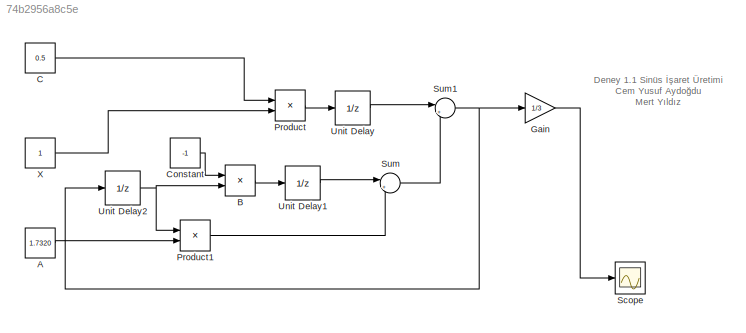
MODEL slx_74b2956a8c5e
KIND model
BLOCK [Constant] A
  Value = 1.7320
BLOCK [Product] B
  InputSameDT = off
  OutDataTypeStr = Inherit: Inherit via internal rule
  Ports = [2, 1]
  RndMeth = Floor
  SaturateOnIntegerOverflow = off
BLOCK [Constant] C
  Value = 0.5
BLOCK [Constant] Constant
  Value = -1
BLOCK [Gain] Gain
  Gain = 1/3
  OutDataTypeStr = Inherit: Inherit via internal rule
  ParamDataTypeStr = Inherit: Inherit via internal rule
  SaturateOnIntegerOverflow = off
BLOCK [Product] Product
  InputSameDT = off
  OutDataTypeStr = Inherit: Inherit via internal rule
  Ports = [2, 1]
  RndMeth = Floor
  SaturateOnIntegerOverflow = off
BLOCK [Product] Product1
  InputSameDT = off
  OutDataTypeStr = Inherit: Inherit via internal rule
  Ports = [2, 1]
  RndMeth = Floor
  SaturateOnIntegerOverflow = off
BLOCK [Scope] Scope
  Floating = off
  NumInputPorts = 1
  Ports = [1]
  ShowLegends = off
BLOCK [Sum] Sum
  IconShape = round
  InputSameDT = off
  Inputs = |++
  OutDataTypeStr = Inherit: Inherit via internal rule
  Ports = [2, 1]
  SaturateOnIntegerOverflow = off
BLOCK [Sum] Sum1
  IconShape = round
  InputSameDT = off
  Inputs = |++
  OutDataTypeStr = Inherit: Inherit via internal rule
  Ports = [2, 1]
  SaturateOnIntegerOverflow = off
BLOCK [UnitDelay] Unit Delay
  InputProcessing = Elements as channels (sample based)
  SampleTime = -1
BLOCK [UnitDelay] Unit Delay1
  InputProcessing = Elements as channels (sample based)
  SampleTime = -1
BLOCK [UnitDelay] Unit Delay2
  InputProcessing = Elements as channels (sample based)
  SampleTime = -1
BLOCK [Constant] X
ANNOTATION (root): Deney 1.1 Sinüs İşaret Üretimi Cem Yusuf Aydoğdu Mert Yıldız
LINE A:1 -> Product1:2
LINE B:1 -> Unit Delay1:1
LINE C:1 -> Product:1
LINE Constant:1 -> B:1
LINE Gain:1 -> Scope:1
LINE Product1:1 -> Sum:2
LINE Product:1 -> Unit Delay:1
NET Sum1:1 -> Gain:1, Unit Delay2:1
LINE Sum:1 -> Sum1:2
LINE Unit Delay1:1 -> Sum:1
NET Unit Delay2:1 -> B:2, Product1:1
LINE Unit Delay:1 -> Sum1:1
LINE X:1 -> Product:2
note: NET lines group one-source signal fan-out (src -> all destinations, sorted); 1:1 wires keep LINE
